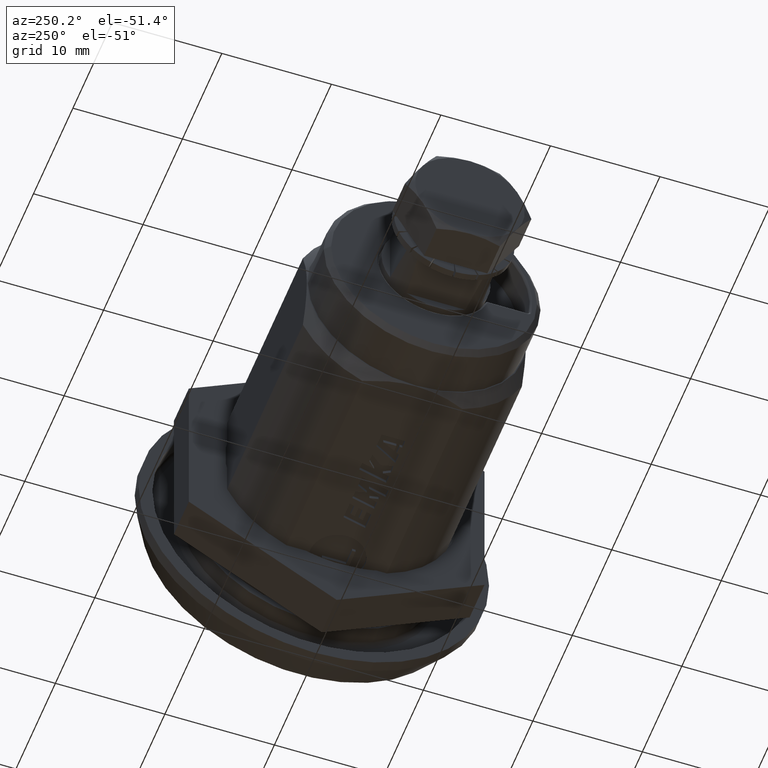
[diagram: clean part render]
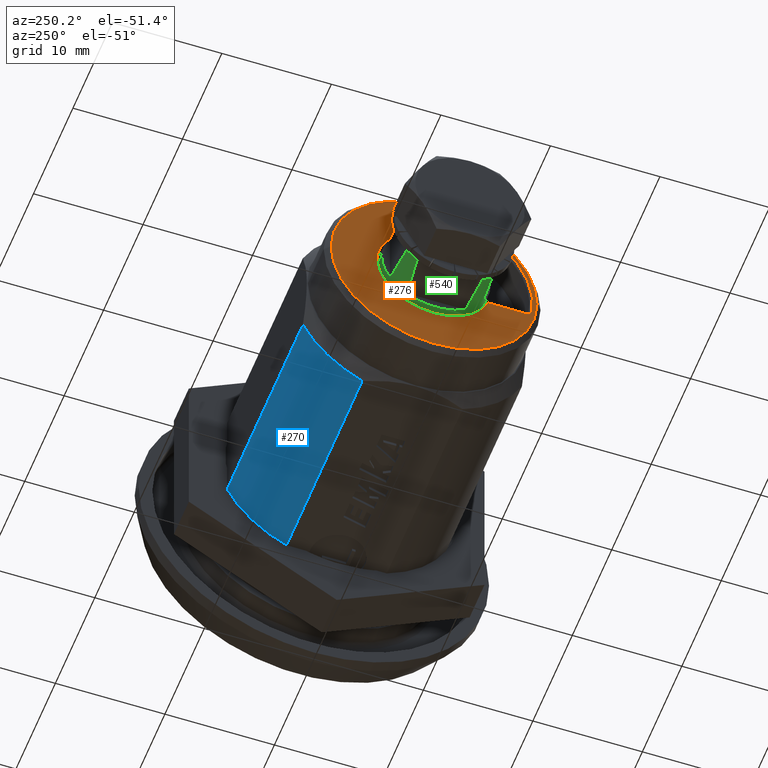
[diagram: same view with three faces highlighted in distinct colors, each labeled with its STEP entity id]
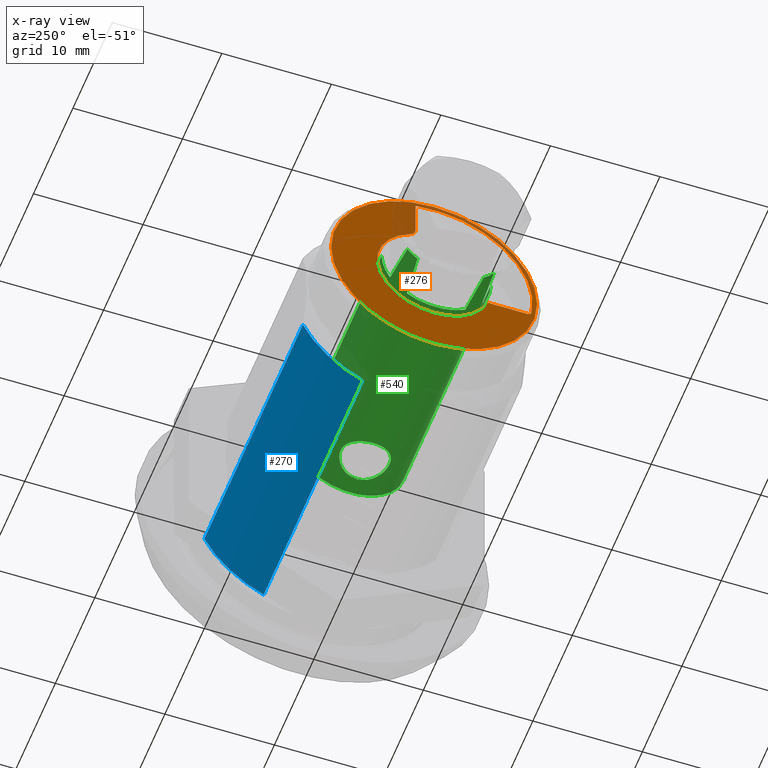
[diagram: x-ray of the same camera — body ghosted, the three highlighted faces saturated]
A machine part, auxiliary view with three faces highlighted in distinct colors.
The next image is the same camera in x-ray (body ghosted, the three faces saturated) — at least one of them is partly hidden behind the body in this view.
Their STEP definitions:

[orange] entity #276 — the highlighted planar face has unit normal (-1, 0, 0).
#276=ADVANCED_FACE('',(#814,#815),#813,.T.);
#813=PLANE('',#4568);
#814=FACE_OUTER_BOUND('',#4569,.T.);
#815=FACE_BOUND('',#4570,.T.);
#4565=CARTESIAN_POINT('',(1.95375331094E+01,2.16200000000E+01,-3.65000000000E+01));
#4566=DIRECTION('',(0.00000000000E+00,0.00000000000E+00,-1.00000000000E+00));
#4567=DIRECTION('',(0.00000000000E+00,-1.00000000000E+00,0.00000000000E+00));
#4568=AXIS2_PLACEMENT_3D('',#4565,#4566,#4567);
#4569=EDGE_LOOP('',(#8596,#8597));
#4570=EDGE_LOOP('',(#8598,#8599,#8600,#8601,#8602,#8603));
#8596=ORIENTED_EDGE('',*,*,#10566,.T.);
#8597=ORIENTED_EDGE('',*,*,#10567,.T.);
#8598=ORIENTED_EDGE('',*,*,#10568,.F.);
#8599=ORIENTED_EDGE('',*,*,#10569,.F.);
#8600=ORIENTED_EDGE('',*,*,#10570,.T.);
#8601=ORIENTED_EDGE('',*,*,#10571,.T.);
#8602=ORIENTED_EDGE('',*,*,#10572,.T.);
#8603=ORIENTED_EDGE('',*,*,#10573,.F.);
#10566=EDGE_CURVE('',#12471,#12472,#12473,.T.);
#10567=EDGE_CURVE('',#12472,#12471,#12479,.T.);
#10568=EDGE_CURVE('',#12485,#12486,#12487,.T.);
#10569=EDGE_CURVE('',#12493,#12485,#12494,.T.);
#10570=EDGE_CURVE('',#12493,#12500,#12501,.T.);
#10571=EDGE_CURVE('',#12500,#12507,#12508,.T.);
#10572=EDGE_CURVE('',#12507,#12514,#12515,.T.);
#10573=EDGE_CURVE('',#12486,#12514,#12521,.T.);
#12471=VERTEX_POINT('',#18677);
#12472=VERTEX_POINT('',#18678);
#12473=CIRCLE('',#18682,9.40000000000E+00);
#12479=CIRCLE('',#18686,9.40000000000E+00);
#12485=VERTEX_POINT('',#18687);
#12486=VERTEX_POINT('',#18688);
#12487=CIRCLE('',#18692,8.00000000000E-01);
#12493=VERTEX_POINT('',#18693);
#12494=LINE('',#18694,#18695);
#12500=VERTEX_POINT('',#18697);
#12501=CIRCLE('',#18701,9.00000000000E+00);
#12507=VERTEX_POINT('',#18702);
#12508=(BOUNDED_CURVE() B_SPLINE_CURVE(3,(#18703,#18704,#18705,#18706,#18707,#18708,#18709),.UNSPECIFIED.,.F.,.F.) B_SPLINE_CURVE_WITH_KNOTS((4,1,1,1,4),(3.47893525722E-03,2.50000000000E-01,5.00000000000E-01,7.50000000000E-01,1.00000000000E+00),.UNSPECIFIED.) CURVE() GEOMETRIC_REPRESENTATION_ITEM() RATIONAL_B_SPLINE_CURVE((1.00000000000E+00,1.00000000000E+00,1.00000000000E+00,1.00000000000E+00,1.00000000000E+00,1.00000000000E+00,1.00000000000E+00)) REPRESENTATION_ITEM('') );
#12514=VERTEX_POINT('',#18710);
#12515=LINE('',#18711,#18712);
#12521=CIRCLE('',#18717,5.20000000000E+00);
#18677=CARTESIAN_POINT('',(1.15112997259E-15,-9.40000000000E+00,-3.65000000000E+01));
#18678=CARTESIAN_POINT('',(-3.55271367880E-15,9.40000000000E+00,-3.65000000000E+01));
#18679=CARTESIAN_POINT('',(0.00000000000E+00,0.00000000000E+00,-3.65000000000E+01));
#18680=DIRECTION('',(0.00000000000E+00,0.00000000000E+00,-1.00000000000E+00));
#18681=DIRECTION('',(-0.00000000000E+00,-1.00000000000E+00,-0.00000000000E+00));
#18682=AXIS2_PLACEMENT_3D('',#18679,#18680,#18681);
#18683=CARTESIAN_POINT('',(0.00000000000E+00,0.00000000000E+00,-3.65000000000E+01));
#18684=DIRECTION('',(0.00000000000E+00,0.00000000000E+00,-1.00000000000E+00));
#18685=DIRECTION('',(-0.00000000000E+00,-1.00000000000E+00,-0.00000000000E+00));
#18686=AXIS2_PLACEMENT_3D('',#18683,#18684,#18685);
#18687=CARTESIAN_POINT('',(-5.45435605732E+00,1.70000000000E+00,-3.65000000000E+01));
#18688=CARTESIAN_POINT('',(-4.72710858301E+00,2.16666666667E+00,-3.65000000000E+01));
#18689=CARTESIAN_POINT('',(-5.45435605732E+00,2.50000000000E+00,-3.65000000000E+01));
#18690=DIRECTION('',(0.00000000000E+00,0.00000000000E+00,1.00000000000E+00));
#18691=DIRECTION('',(-0.00000000000E+00,1.00000000000E+00,-0.00000000000E+00));
#18692=AXIS2_PLACEMENT_3D('',#18689,#18690,#18691);
#18693=CARTESIAN_POINT('',(-8.83798619596E+00,1.70000000000E+00,-3.65000000000E+01));
#18694=CARTESIAN_POINT('',(-8.83798619596E+00,1.70000000000E+00,-3.65000000000E+01));
#18695=VECTOR('',#18696,3.38363013864E+00);
#18696=DIRECTION('',(1.00000000000E+00,0.00000000000E+00,0.00000000000E+00));
#18697=CARTESIAN_POINT('',(1.36194173933E+00,-8.89635401154E+00,-3.65000000000E+01));
#18698=CARTESIAN_POINT('',(0.00000000000E+00,0.00000000000E+00,-3.65000000000E+01));
#18699=DIRECTION('',(0.00000000000E+00,0.00000000000E+00,1.00000000000E+00));
#18700=DIRECTION('',(9.81998466218E-01,-1.88888888889E-01,-0.00000000000E+00));
#18701=AXIS2_PLACEMENT_3D('',#18698,#18699,#18700);
#18702=CARTESIAN_POINT('',(1.70000000000E+00,-8.50117638941E+00,-3.65000000000E+01));
#18703=CARTESIAN_POINT('',(1.36192802352E+00,-8.89626571332E+00,-3.65000000000E+01));
#18704=CARTESIAN_POINT('',(1.40852964156E+00,-8.88902684492E+00,-3.65000000000E+01));
#18705=CARTESIAN_POINT('',(1.49576044774E+00,-8.85934937364E+00,-3.65000000000E+01));
#18706=CARTESIAN_POINT('',(1.61039674666E+00,-8.76771215094E+00,-3.65000000000E+01));
#18707=CARTESIAN_POINT('',(1.68379494632E+00,-8.64010849467E+00,-3.65000000000E+01));
#18708=CARTESIAN_POINT('',(1.70000000000E+00,-8.54943446985E+00,-3.65000000000E+01));
#18709=CARTESIAN_POINT('',(1.70000000000E+00,-8.50117638941E+00,-3.65000000000E+01));
#18710=CARTESIAN_POINT('',(1.70000097636E+00,-4.91426461237E+00,-3.65000000000E+01));
#18711=CARTESIAN_POINT('',(1.70000000000E+00,-8.50117638941E+00,-3.65000000000E+01));
#18712=VECTOR('',#18713,3.58691177704E+00);
#18713=DIRECTION('',(2.72201286401E-07,1.00000000000E+00,0.00000000000E+00));
#18714=CARTESIAN_POINT('',(0.00000000000E+00,0.00000000000E+00,-3.65000000000E+01));
#18715=DIRECTION('',(0.00000000000E+00,0.00000000000E+00,-1.00000000000E+00));
#18716=DIRECTION('',(-9.09059342886E-01,4.16666666667E-01,0.00000000000E+00));
#18717=AXIS2_PLACEMENT_3D('',#18714,#18715,#18716);

[blue] entity #270 — the highlighted cylindrical surface (partial cylindrical patch) has radius 11 mm, axis along (1, 0, 0).
#270=ADVANCED_FACE('',(#748),#747,.T.);
#747=CYLINDRICAL_SURFACE('',#4530,1.10000000000E+01);
#748=FACE_OUTER_BOUND('',#4531,.T.);
#4527=CARTESIAN_POINT('',(0.00000000000E+00,0.00000000000E+00,-1.85000000000E+01));
#4528=DIRECTION('',(-0.00000000000E+00,-0.00000000000E+00,1.00000000000E+00));
#4529=DIRECTION('',(-0.00000000000E+00,1.00000000000E+00,-0.00000000000E+00));
#4530=AXIS2_PLACEMENT_3D('',#4527,#4528,#4529);
#4531=EDGE_LOOP('',(#8522,#8523,#8524,#8525));
#8522=ORIENTED_EDGE('',*,*,#10500,.T.);
#8523=ORIENTED_EDGE('',*,*,#10501,.F.);
#8524=ORIENTED_EDGE('',*,*,#10438,.T.);
#8525=ORIENTED_EDGE('',*,*,#10502,.T.);
#10438=EDGE_CURVE('',#11587,#11580,#11588,.T.);
#10500=EDGE_CURVE('',#12014,#12015,#12016,.T.);
#10501=EDGE_CURVE('',#11587,#12015,#12022,.T.);
#10502=EDGE_CURVE('',#11580,#12014,#12028,.T.);
#11580=VERTEX_POINT('',#18128);
#11587=VERTEX_POINT('',#18132);
#11588=CIRCLE('',#18136,1.10000000000E+01);
#12014=VERTEX_POINT('',#18399);
#12015=VERTEX_POINT('',#18400);
#12016=CIRCLE('',#18404,1.10000000000E+01);
#12022=LINE('',#18405,#18406);
#12028=LINE('',#18408,#18409);
#18128=CARTESIAN_POINT('',(1.00000000000E+01,4.58257569496E+00,-6.00000000000E+00));
#18132=CARTESIAN_POINT('',(4.58257569496E+00,1.00000000000E+01,-6.00000000000E+00));
#18133=CARTESIAN_POINT('',(0.00000000000E+00,0.00000000000E+00,-6.00000000000E+00));
#18134=DIRECTION('',(0.00000000000E+00,0.00000000000E+00,-1.00000000000E+00));
#18135=DIRECTION('',(-4.16597790451E-01,-9.09090909091E-01,-0.00000000000E+00));
#18136=AXIS2_PLACEMENT_3D('',#18133,#18134,#18135);
#18399=CARTESIAN_POINT('',(1.00000000000E+01,4.58257569496E+00,-3.10000000000E+01));
#18400=CARTESIAN_POINT('',(4.58257569496E+00,1.00000000000E+01,-3.10000000000E+01));
#18401=CARTESIAN_POINT('',(0.00000000000E+00,0.00000000000E+00,-3.10000000000E+01));
#18402=DIRECTION('',(0.00000000000E+00,-0.00000000000E+00,1.00000000000E+00));
#18403=DIRECTION('',(-9.09090909091E-01,-4.16597790451E-01,-0.00000000000E+00));
#18404=AXIS2_PLACEMENT_3D('',#18401,#18402,#18403);
#18405=CARTESIAN_POINT('',(4.58257569496E+00,1.00000000000E+01,-6.00000000000E+00));
#18406=VECTOR('',#18407,2.50000000000E+01);
#18407=DIRECTION('',(0.00000000000E+00,0.00000000000E+00,-1.00000000000E+00));
#18408=CARTESIAN_POINT('',(1.00000000000E+01,4.58257569496E+00,-6.00000000000E+00));
#18409=VECTOR('',#18410,2.50000000000E+01);
#18410=DIRECTION('',(0.00000000000E+00,0.00000000000E+00,-1.00000000000E+00));

[green] entity #540 — the highlighted cylindrical surface (partial cylindrical patch) has radius 4.975 mm, axis along (1, -0, 0).
#540=ADVANCED_FACE('',(#3470,#3471),#3469,.T.);
#3469=CYLINDRICAL_SURFACE('',#7328,4.97500000000E+00);
#3470=FACE_OUTER_BOUND('',#7329,.T.);
#3471=FACE_BOUND('',#7330,.T.);
#7325=CARTESIAN_POINT('',(0.00000000000E+00,0.00000000000E+00,1.30000003874E+01));
#7326=DIRECTION('',(-0.00000000000E+00,-0.00000000000E+00,-1.00000000000E+00));
#7327=DIRECTION('',(9.99961923064E-01,8.72653549837E-03,0.00000000000E+00));
#7328=AXIS2_PLACEMENT_3D('',#7325,#7326,#7327);
#7329=EDGE_LOOP('',(#9881,#9882,#9883,#9884,#9885,#9886,#9887,#9888,#9889,#9890,#9891,#9892,#9893));
#7330=EDGE_LOOP('',(#9894,#9895));
#9881=ORIENTED_EDGE('',*,*,#11066,.F.);
#9882=ORIENTED_EDGE('',*,*,#11063,.F.);
#9883=ORIENTED_EDGE('',*,*,#11050,.F.);
#9884=ORIENTED_EDGE('',*,*,#11061,.F.);
#9885=ORIENTED_EDGE('',*,*,#11062,.F.);
#9886=ORIENTED_EDGE('',*,*,#11059,.F.);
#9887=ORIENTED_EDGE('',*,*,#11055,.F.);
#9888=ORIENTED_EDGE('',*,*,#11072,.F.);
#9889=ORIENTED_EDGE('',*,*,#11070,.F.);
#9890=ORIENTED_EDGE('',*,*,#11152,.T.);
#9891=ORIENTED_EDGE('',*,*,#11150,.T.);
#9892=ORIENTED_EDGE('',*,*,#11147,.T.);
#9893=ORIENTED_EDGE('',*,*,#11153,.F.);
#9894=ORIENTED_EDGE('',*,*,#11080,.T.);
#9895=ORIENTED_EDGE('',*,*,#11077,.T.);
#11050=EDGE_CURVE('',#15657,#15658,#15659,.T.);
#11055=EDGE_CURVE('',#15685,#15692,#15693,.T.);
#11059=EDGE_CURVE('',#15692,#15719,#15720,.T.);
#11061=EDGE_CURVE('',#15726,#15657,#15733,.T.);
#11062=EDGE_CURVE('',#15719,#15726,#15739,.T.);
#11063=EDGE_CURVE('',#15658,#15745,#15746,.T.);
#11066=EDGE_CURVE('',#15745,#15765,#15766,.T.);
#11070=EDGE_CURVE('',#15786,#15778,#15793,.T.);
#11072=EDGE_CURVE('',#15778,#15685,#15805,.T.);
#11077=EDGE_CURVE('',#15811,#15833,#15840,.T.);
#11080=EDGE_CURVE('',#15833,#15811,#15859,.T.);
#11147=EDGE_CURVE('',#16303,#16295,#16304,.T.);
#11150=EDGE_CURVE('',#16322,#16303,#16323,.T.);
#11152=EDGE_CURVE('',#15786,#16322,#16335,.T.);
#11153=EDGE_CURVE('',#15765,#16295,#16341,.T.);
#15657=VERTEX_POINT('',#21064);
#15658=VERTEX_POINT('',#21065);
#15659=CIRCLE('',#21069,4.97500000000E+00);
#15685=VERTEX_POINT('',#21083);
#15692=VERTEX_POINT('',#21087);
#15693=CIRCLE('',#21091,4.97500000000E+00);
#15719=VERTEX_POINT('',#21105);
#15720=(BOUNDED_CURVE() B_SPLINE_CURVE(3,(#21106,#21107,#21108,#21109),.UNSPECIFIED.,.F.,.F.) B_SPLINE_CURVE_WITH_KNOTS((4,4),(0.00000000000E+00,1.00000000000E+00),.UNSPECIFIED.) CURVE() GEOMETRIC_REPRESENTATION_ITEM() RATIONAL_B_SPLINE_CURVE((1.00000000000E+00,1.00000000000E+00,1.00000000000E+00,1.00000000000E+00)) REPRESENTATION_ITEM('') );
#15726=VERTEX_POINT('',#21110);
#15733=(BOUNDED_CURVE() B_SPLINE_CURVE(3,(#21114,#21115,#21116,#21117),.UNSPECIFIED.,.F.,.F.) B_SPLINE_CURVE_WITH_KNOTS((4,4),(0.00000000000E+00,1.00000000000E+00),.UNSPECIFIED.) CURVE() GEOMETRIC_REPRESENTATION_ITEM() RATIONAL_B_SPLINE_CURVE((1.00000000000E+00,1.00000000000E+00,1.00000000000E+00,1.00000000000E+00)) REPRESENTATION_ITEM('') );
#15739=CIRCLE('',#21121,4.97500000000E+00);
#15745=VERTEX_POINT('',#21122);
#15746=(BOUNDED_CURVE() B_SPLINE_CURVE(3,(#21123,#21124,#21125,#21126),.UNSPECIFIED.,.F.,.F.) B_SPLINE_CURVE_WITH_KNOTS((4,4),(0.00000000000E+00,1.00000000000E+00),.UNSPECIFIED.) CURVE() GEOMETRIC_REPRESENTATION_ITEM() RATIONAL_B_SPLINE_CURVE((1.00000000000E+00,1.00000000000E+00,1.00000000000E+00,1.00000000000E+00)) REPRESENTATION_ITEM('') );
#15765=VERTEX_POINT('',#21135);
#15766=CIRCLE('',#21139,4.97500000000E+00);
#15778=VERTEX_POINT('',#21144);
#15786=VERTEX_POINT('',#21149);
#15793=CIRCLE('',#21157,4.97500000000E+00);
#15805=(BOUNDED_CURVE() B_SPLINE_CURVE(3,(#21162,#21163,#21164,#21165),.UNSPECIFIED.,.F.,.F.) B_SPLINE_CURVE_WITH_KNOTS((4,4),(0.00000000000E+00,1.00000000000E+00),.UNSPECIFIED.) CURVE() GEOMETRIC_REPRESENTATION_ITEM() RATIONAL_B_SPLINE_CURVE((1.00000000000E+00,1.00000000000E+00,1.00000000000E+00,1.00000000000E+00)) REPRESENTATION_ITEM('') );
#15811=VERTEX_POINT('',#21166);
#15833=VERTEX_POINT('',#21197);
#15840=(BOUNDED_CURVE() B_SPLINE_CURVE(3,(#21201,#21202,#21203,#21204,#21205,#21206,#21207,#21208,#21209,#21210,#21211,#21212,#21213,#21214,#21215,#21216,#21217,#21218,#21219,#21220),.UNSPECIFIED.,.F.,.F.) B_SPLINE_CURVE_WITH_KNOTS((4,1,1,1,1,1,1,1,1,1,1,1,1,1,1,1,1,4),(0.00000000000E+00,5.88235294118E-02,1.17647058824E-01,1.76470588235E-01,2.35294117647E-01,2.94117647059E-01,3.52941176471E-01,4.11764705882E-01,4.70588235294E-01,5.29411764706E-01,5.88235294118E-01,6.47058823529E-01,7.05882352941E-01,7.64705882353E-01,8.23529411765E-01,8.82352941176E-01,9.41176470588E-01,1.00000000000E+00),.UNSPECIFIED.) CURVE() GEOMETRIC_REPRESENTATION_ITEM() RATIONAL_B_SPLINE_CURVE((1.00000000000E+00,1.00000000000E+00,1.00000000000E+00,1.00000000000E+00,1.00000000000E+00,1.00000000000E+00,1.00000000000E+00,1.00000000000E+00,1.00000000000E+00,1.00000000000E+00,1.00000000000E+00,1.00000000000E+00,1.00000000000E+00,1.00000000000E+00,1.00000000000E+00,1.00000000000E+00,1.00000000000E+00,1.00000000000E+00,1.00000000000E+00,1.00000000000E+00)) REPRESENTATION_ITEM('') );
#15859=(BOUNDED_CURVE() B_SPLINE_CURVE(3,(#21246,#21247,#21248,#21249,#21250,#21251,#21252,#21253,#21254,#21255,#21256,#21257,#21258,#21259,#21260,#21261,#21262,#21263,#21264,#21265),.UNSPECIFIED.,.F.,.F.) B_SPLINE_CURVE_WITH_KNOTS((4,1,1,1,1,1,1,1,1,1,1,1,1,1,1,1,1,4),(0.00000000000E+00,5.88235294118E-02,1.17647058824E-01,1.76470588235E-01,2.35294117647E-01,2.94117647059E-01,3.52941176471E-01,4.11764705882E-01,4.70588235294E-01,5.29411764706E-01,5.88235294118E-01,6.47058823529E-01,7.05882352941E-01,7.64705882353E-01,8.23529411765E-01,8.82352941176E-01,9.41176470588E-01,1.00000000000E+00),.UNSPECIFIED.) CURVE() GEOMETRIC_REPRESENTATION_ITEM() RATIONAL_B_SPLINE_CURVE((1.00000000000E+00,1.00000000000E+00,1.00000000000E+00,1.00000000000E+00,1.00000000000E+00,1.00000000000E+00,1.00000000000E+00,1.00000000000E+00,1.00000000000E+00,1.00000000000E+00,1.00000000000E+00,1.00000000000E+00,1.00000000000E+00,1.00000000000E+00,1.00000000000E+00,1.00000000000E+00,1.00000000000E+00,1.00000000000E+00,1.00000000000E+00,1.00000000000E+00)) REPRESENTATION_ITEM('') );
#16295=VERTEX_POINT('',#21624);
#16303=VERTEX_POINT('',#21631);
#16304=(BOUNDED_CURVE() B_SPLINE_CURVE(2,(#21632,#21633,#21634),.UNSPECIFIED.,.F.,.F.) B_SPLINE_CURVE_WITH_KNOTS((3,3),(0.00000000000E+00,1.00000000000E+00),.UNSPECIFIED.) CURVE() GEOMETRIC_REPRESENTATION_ITEM() RATIONAL_B_SPLINE_CURVE((1.00000000000E+00,9.99993627110E-01,1.00000000000E+00)) REPRESENTATION_ITEM('') );
#16322=VERTEX_POINT('',#21639);
#16323=CIRCLE('',#21643,4.97500000000E+00);
#16335=(BOUNDED_CURVE() B_SPLINE_CURVE(1,(#21647,#21648),.UNSPECIFIED.,.F.,.F.) B_SPLINE_CURVE_WITH_KNOTS((2,2),(2.04724408687E-01,9.16666665745E-01),.UNSPECIFIED.) CURVE() GEOMETRIC_REPRESENTATION_ITEM() RATIONAL_B_SPLINE_CURVE((1.00000000000E+00,1.00000000000E+00)) REPRESENTATION_ITEM('') );
#16341=(BOUNDED_CURVE() B_SPLINE_CURVE(1,(#21649,#21650),.UNSPECIFIED.,.F.,.F.) B_SPLINE_CURVE_WITH_KNOTS((2,2),(2.04724409449E-01,9.16666666667E-01),.UNSPECIFIED.) CURVE() GEOMETRIC_REPRESENTATION_ITEM() RATIONAL_B_SPLINE_CURVE((7.50000000000E-01,7.50000000000E-01)) REPRESENTATION_ITEM('') );
#21064=CARTESIAN_POINT('',(-3.02458674863E+00,3.95000000000E+00,2.57000000000E+01));
#21065=CARTESIAN_POINT('',(-3.95000000000E+00,3.02458674863E+00,2.57000000000E+01));
#21066=CARTESIAN_POINT('',(0.00000000000E+00,0.00000000000E+00,2.57000000000E+01));
#21067=DIRECTION('',(0.00000000000E+00,0.00000000000E+00,1.00000000000E+00));
#21068=DIRECTION('',(6.07957135403E-01,-7.93969849246E-01,-0.00000000000E+00));
#21069=AXIS2_PLACEMENT_3D('',#21066,#21067,#21068);
#21083=CARTESIAN_POINT('',(3.95000000000E+00,3.02458674863E+00,2.57000000000E+01));
#21087=CARTESIAN_POINT('',(3.02458674863E+00,3.95000000000E+00,2.57000000000E+01));
#21088=CARTESIAN_POINT('',(0.00000000000E+00,0.00000000000E+00,2.57000000000E+01));
#21089=DIRECTION('',(0.00000000000E+00,-0.00000000000E+00,1.00000000000E+00));
#21090=DIRECTION('',(-7.93969849246E-01,-6.07957135403E-01,-0.00000000000E+00));
#21091=AXIS2_PLACEMENT_3D('',#21088,#21089,#21090);
#21105=CARTESIAN_POINT('',(2.66657551928E+00,4.20000000000E+00,2.20000000000E+01));
#21106=CARTESIAN_POINT('',(3.02458674863E+00,3.95000000000E+00,2.57000000000E+01));
#21107=CARTESIAN_POINT('',(2.91566739411E+00,4.03340152819E+00,2.44656573828E+01));
#21108=CARTESIAN_POINT('',(2.79770838662E+00,4.11674388242E+00,2.32321905402E+01));
#21109=CARTESIAN_POINT('',(2.66657551928E+00,4.20000000000E+00,2.20000000000E+01));
#21110=CARTESIAN_POINT('',(-2.66657551928E+00,4.20000000000E+00,2.20000000000E+01));
#21114=CARTESIAN_POINT('',(-2.66657551928E+00,4.20000000000E+00,2.20000000000E+01));
#21115=CARTESIAN_POINT('',(-2.79770838662E+00,4.11674388242E+00,2.32321905402E+01));
#21116=CARTESIAN_POINT('',(-2.91566739411E+00,4.03340152819E+00,2.44656573828E+01));
#21117=CARTESIAN_POINT('',(-3.02458674863E+00,3.95000000000E+00,2.57000000000E+01));
#21118=CARTESIAN_POINT('',(0.00000000000E+00,0.00000000000E+00,2.20000000000E+01));
#21119=DIRECTION('',(0.00000000000E+00,-0.00000000000E+00,1.00000000000E+00));
#21120=DIRECTION('',(-5.35995079251E-01,-8.44221105528E-01,-0.00000000000E+00));
#21121=AXIS2_PLACEMENT_3D('',#21118,#21119,#21120);
#21122=CARTESIAN_POINT('',(-4.20000000000E+00,2.66657551928E+00,2.20000000000E+01));
#21123=CARTESIAN_POINT('',(-3.95000000000E+00,3.02458674863E+00,2.57000000000E+01));
#21124=CARTESIAN_POINT('',(-4.03340152819E+00,2.91566739411E+00,2.44656573828E+01));
#21125=CARTESIAN_POINT('',(-4.11674388242E+00,2.79770838662E+00,2.32321905402E+01));
#21126=CARTESIAN_POINT('',(-4.20000000000E+00,2.66657551928E+00,2.20000000000E+01));
#21135=CARTESIAN_POINT('',(-4.97477722261E+00,-4.70806268258E-02,2.20000000000E+01));
#21136=CARTESIAN_POINT('',(0.00000000000E+00,0.00000000000E+00,2.20000000000E+01));
#21137=DIRECTION('',(0.00000000000E+00,0.00000000000E+00,1.00000000000E+00));
#21138=DIRECTION('',(1.00000000000E+00,-0.00000000000E+00,-0.00000000000E+00));
#21139=AXIS2_PLACEMENT_3D('',#21136,#21137,#21138);
#21144=CARTESIAN_POINT('',(4.20000000000E+00,2.66657551928E+00,2.20000000000E+01));
#21149=CARTESIAN_POINT('',(4.97481057446E+00,4.34136875900E-02,2.20000000000E+01));
#21154=CARTESIAN_POINT('',(0.00000000000E+00,0.00000000000E+00,2.20000000000E+01));
#21155=DIRECTION('',(0.00000000000E+00,0.00000000000E+00,1.00000000000E+00));
#21156=DIRECTION('',(-8.44221105528E-01,5.35995079251E-01,-0.00000000000E+00));
#21157=AXIS2_PLACEMENT_3D('',#21154,#21155,#21156);
#21162=CARTESIAN_POINT('',(4.20000000000E+00,2.66657551928E+00,2.20000000000E+01));
#21163=CARTESIAN_POINT('',(4.11674388242E+00,2.79770838662E+00,2.32321905402E+01));
#21164=CARTESIAN_POINT('',(4.03340152819E+00,2.91566739411E+00,2.44656573828E+01));
#21165=CARTESIAN_POINT('',(3.95000000000E+00,3.02458674863E+00,2.57000000000E+01));
#21166=CARTESIAN_POINT('',(5.73710809114E-11,4.97500126748E+00,6.09999873257E+00));
#21197=CARTESIAN_POINT('',(-3.29237530736E-09,4.97500847890E+00,1.90000847887E+00));
#21201=CARTESIAN_POINT('',(5.73710809114E-11,4.97500126748E+00,6.09999873257E+00));
#21202=CARTESIAN_POINT('',(-1.37781936590E-01,4.97500126748E+00,6.09999223310E+00));
#21203=CARTESIAN_POINT('',(-4.11170825123E-01,4.96369867646E+00,6.07653250942E+00));
#21204=CARTESIAN_POINT('',(-8.19360221933E-01,4.91258844919E+00,5.96738290091E+00));
#21205=CARTESIAN_POINT('',(-1.20087937665E+00,4.83277039250E+00,5.78637754471E+00));
#21206=CARTESIAN_POINT('',(-1.54566148264E+00,4.73277809955E+00,5.53524193320E+00));
#21207=CARTESIAN_POINT('',(-1.83167627880E+00,4.62806254120E+00,5.22517021476E+00));
#21208=CARTESIAN_POINT('',(-2.03833988103E+00,4.53948152315E+00,4.88824303847E+00));
#21209=CARTESIAN_POINT('',(-2.17230853780E+00,4.47610003493E+00,4.53654900659E+00));
#21210=CARTESIAN_POINT('',(-2.23738436270E+00,4.44351973292E+00,4.17977419361E+00));
#21211=CARTESIAN_POINT('',(-2.23755898950E+00,4.44343072994E+00,3.82223086422E+00));
#21212=CARTESIAN_POINT('',(-2.17288985724E+00,4.47581389365E+00,3.46560495966E+00));
#21213=CARTESIAN_POINT('',(-2.03938868205E+00,4.53900363611E+00,3.11385773232E+00));
#21214=CARTESIAN_POINT('',(-1.83298628069E+00,4.62754517108E+00,2.77652775302E+00));
#21215=CARTESIAN_POINT('',(-1.54648712004E+00,4.73253064198E+00,2.46533148612E+00));
#21216=CARTESIAN_POINT('',(-1.20092152396E+00,4.83276639095E+00,2.21364397779E+00));
#21217=CARTESIAN_POINT('',(-8.19555308705E-01,4.91255766052E+00,2.03268306605E+00));
#21218=CARTESIAN_POINT('',(-4.11014816838E-01,4.96371515839E+00,1.92343078807E+00));
#21219=CARTESIAN_POINT('',(-1.37712450099E-01,4.97500847890E+00,1.90000617361E+00));
#21220=CARTESIAN_POINT('',(-3.29237530736E-09,4.97500847890E+00,1.90000847887E+00));
#21246=CARTESIAN_POINT('',(-3.29237530736E-09,4.97500847890E+00,1.90000847887E+00));
#21247=CARTESIAN_POINT('',(1.37064096887E-01,4.97500847890E+00,1.90006087385E+00));
#21248=CARTESIAN_POINT('',(4.09828612115E-01,4.96378736414E+00,1.92321861944E+00));
#21249=CARTESIAN_POINT('',(8.18662866571E-01,4.91280282014E+00,2.03216490511E+00));
#21250=CARTESIAN_POINT('',(1.20488974812E+00,4.83184435585E+00,2.21573331978E+00));
#21251=CARTESIAN_POINT('',(1.54829673769E+00,4.73181400018E+00,2.46748300063E+00));
#21252=CARTESIAN_POINT('',(1.83095592095E+00,4.62835209872E+00,2.77393177014E+00));
#21253=CARTESIAN_POINT('',(2.04069802733E+00,4.53845794975E+00,3.11568558938E+00));
#21254=CARTESIAN_POINT('',(2.17384187071E+00,4.47533352410E+00,3.46921186036E+00));
#21255=CARTESIAN_POINT('',(2.23770808998E+00,4.44335692441E+00,3.82484030897E+00));
#21256=CARTESIAN_POINT('',(2.23720693880E+00,4.44360906669E+00,4.18100601950E+00));
#21257=CARTESIAN_POINT('',(2.17212651575E+00,4.47618815157E+00,4.53707789229E+00));
#21258=CARTESIAN_POINT('',(2.03821677384E+00,4.53953569318E+00,4.88850194853E+00));
#21259=CARTESIAN_POINT('',(1.83145512773E+00,4.62815711441E+00,5.22547169744E+00));
#21260=CARTESIAN_POINT('',(1.54486277775E+00,4.73305493101E+00,5.53605331868E+00));
#21261=CARTESIAN_POINT('',(1.19971330157E+00,4.83305528384E+00,5.78702783931E+00));
#21262=CARTESIAN_POINT('',(8.18666813271E-01,4.91269440545E+00,5.96761427862E+00));
#21263=CARTESIAN_POINT('',(4.10586666250E-01,4.96374076779E+00,6.07661350087E+00));
#21264=CARTESIAN_POINT('',(1.37568363678E-01,4.97500126748E+00,6.09999892305E+00));
#21265=CARTESIAN_POINT('',(5.73710809114E-11,4.97500126748E+00,6.09999873257E+00));
#21624=CARTESIAN_POINT('',(-4.97481056724E+00,-4.34145141044E-02,3.00000000000E-01));
#21631=CARTESIAN_POINT('',(-4.97500000000E+00,6.09241661027E-16,3.00000000000E-01));
#21632=CARTESIAN_POINT('',(-4.97500000000E+00,0.00000000000E+00,3.00000000000E-01));
#21633=CARTESIAN_POINT('',(-4.97500000000E+00,-1.77614479925E-02,3.00000000000E-01));
#21634=CARTESIAN_POINT('',(-4.97481056724E+00,-4.34145141044E-02,3.00000000000E-01));
#21639=CARTESIAN_POINT('',(4.97481057446E+00,4.34136875901E-02,3.00000000000E-01));
#21640=CARTESIAN_POINT('',(0.00000000000E+00,0.00000000000E+00,3.00000000000E-01));
#21641=DIRECTION('',(-0.00000000000E+00,0.00000000000E+00,1.00000000000E+00));
#21642=DIRECTION('',(-1.00000000000E+00,-0.00000000000E+00,-0.00000000000E+00));
#21643=AXIS2_PLACEMENT_3D('',#21640,#21641,#21642);
#21647=CARTESIAN_POINT('',(4.97481056724E+00,4.34145141044E-02,2.20000000232E+01));
#21648=CARTESIAN_POINT('',(4.97481056724E+00,4.34145141044E-02,3.00000028090E-01));
#21649=CARTESIAN_POINT('',(-4.97481056724E+00,-4.34145141044E-02,2.20000000000E+01));
#21650=CARTESIAN_POINT('',(-4.97481056724E+00,-4.34145141044E-02,3.00000000000E-01));